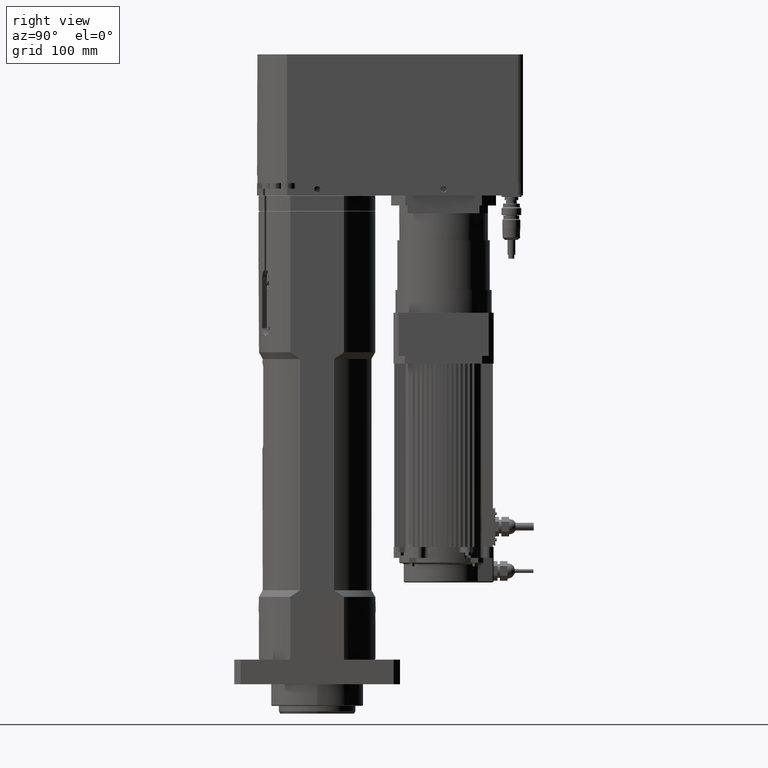
[diagram: clean part render]
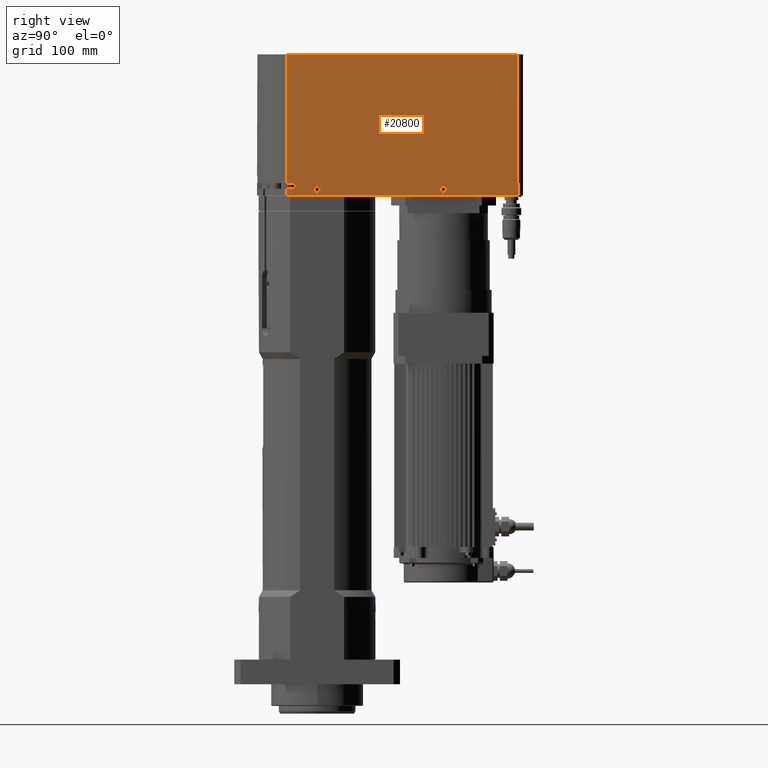
[diagram: same view with one face highlighted and labeled with its STEP entity id]
A machine part, right view. The second image highlights one B-rep face of the part: STEP entity #20800.
In plain terms, the highlighted planar face has unit normal (1, 0, 0).
Its self-contained STEP definition (entity closure, byte-faithful):
#751=LINE('',#35174,#2425);
#753=LINE('',#35178,#2427);
#754=LINE('',#35182,#2428);
#766=LINE('',#35227,#2440);
#769=LINE('',#35236,#2443);
#772=LINE('',#35246,#2446);
#826=LINE('',#35457,#2500);
#832=LINE('',#35473,#2506);
#833=LINE('',#35476,#2507);
#834=LINE('',#35477,#2508);
#2425=VECTOR('',#26324,6.99999999999989);
#2427=VECTOR('',#26328,10.9436096450426);
#2428=VECTOR('',#26333,10.9436096450699);
#2440=VECTOR('',#26381,0.600000000000378);
#2443=VECTOR('',#26390,167.);
#2446=VECTOR('',#26399,299.486442662386);
#2500=VECTOR('',#26601,167.);
#2506=VECTOR('',#26619,9.00000000000006);
#2507=VECTOR('',#26622,300.086442662414);
#2508=VECTOR('',#26623,15.9999999999999);
#3965=FACE_BOUND('',#6507,.T.);
#3966=FACE_BOUND('',#6508,.T.);
#5092=FACE_OUTER_BOUND('',#6506,.T.);
#6506=EDGE_LOOP('',(#15478,#15479,#15480,#15481,#15482,#15483,#15484,#15485,
#15486,#15487));
#6507=EDGE_LOOP('',(#15488));
#6508=EDGE_LOOP('',(#15489));
#7614=CIRCLE('',#22462,4.188);
#7615=CIRCLE('',#22464,4.188);
#8967=VERTEX_POINT('',#35171);
#8968=VERTEX_POINT('',#35173);
#8969=VERTEX_POINT('',#35177);
#8970=VERTEX_POINT('',#35181);
#8975=VERTEX_POINT('',#35193);
#8976=VERTEX_POINT('',#35196);
#8984=VERTEX_POINT('',#35224);
#8985=VERTEX_POINT('',#35226);
#8988=VERTEX_POINT('',#35234);
#8992=VERTEX_POINT('',#35244);
#9055=VERTEX_POINT('',#35471);
#9056=VERTEX_POINT('',#35475);
#11234=EDGE_CURVE('',#8967,#8968,#751,.T.);
#11236=EDGE_CURVE('',#8968,#8969,#753,.T.);
#11238=EDGE_CURVE('',#8970,#8967,#754,.T.);
#11244=EDGE_CURVE('',#8975,#8975,#7614,.T.);
#11245=EDGE_CURVE('',#8976,#8976,#7615,.T.);
#11259=EDGE_CURVE('',#8984,#8985,#766,.T.);
#11264=EDGE_CURVE('',#8988,#8984,#769,.T.);
#11269=EDGE_CURVE('',#8988,#8992,#772,.T.);
#11361=EDGE_CURVE('',#8992,#8969,#826,.T.);
#11369=EDGE_CURVE('',#9055,#8970,#832,.T.);
#11370=EDGE_CURVE('',#9055,#9056,#833,.T.);
#11371=EDGE_CURVE('',#9056,#8985,#834,.T.);
#15478=ORIENTED_EDGE('',*,*,#11238,.F.);
#15479=ORIENTED_EDGE('',*,*,#11369,.F.);
#15480=ORIENTED_EDGE('',*,*,#11370,.T.);
#15481=ORIENTED_EDGE('',*,*,#11371,.T.);
#15482=ORIENTED_EDGE('',*,*,#11259,.F.);
#15483=ORIENTED_EDGE('',*,*,#11264,.F.);
#15484=ORIENTED_EDGE('',*,*,#11269,.T.);
#15485=ORIENTED_EDGE('',*,*,#11361,.T.);
#15486=ORIENTED_EDGE('',*,*,#11236,.F.);
#15487=ORIENTED_EDGE('',*,*,#11234,.F.);
#15488=ORIENTED_EDGE('',*,*,#11245,.T.);
#15489=ORIENTED_EDGE('',*,*,#11244,.T.);
#18626=PLANE('',#22562);
#20800=ADVANCED_FACE('',(#5092,#3965,#3966),#18626,.T.);
#22462=AXIS2_PLACEMENT_3D('',#35194,#26344,#26345);
#22464=AXIS2_PLACEMENT_3D('',#35197,#26348,#26349);
#22562=AXIS2_PLACEMENT_3D('',#35474,#26620,#26621);
#26324=DIRECTION('',(0.,0.,1.));
#26328=DIRECTION('',(-8.3038803127521E-16,-1.,2.66122490000509E-109));
#26333=DIRECTION('',(0.,1.,0.));
#26344=DIRECTION('center_axis',(-1.,0.,0.));
#26345=DIRECTION('ref_axis',(0.,1.,0.));
#26348=DIRECTION('center_axis',(-1.,0.,0.));
#26349=DIRECTION('ref_axis',(0.,1.,0.));
#26381=DIRECTION('',(0.,1.,0.));
#26390=DIRECTION('',(-8.39734513445887E-140,-2.66122490000509E-109,-1.));
#26399=DIRECTION('',(-8.3038803127521E-16,-1.,2.66122490000509E-109));
#26601=DIRECTION('',(-8.39734513445887E-140,-2.66122490000509E-109,-1.));
#26619=DIRECTION('',(0.,0.,1.));
#26620=DIRECTION('center_axis',(1.,0.,0.));
#26621=DIRECTION('ref_axis',(0.,1.,0.));
#26622=DIRECTION('',(0.,1.,0.));
#26623=DIRECTION('',(0.,0.,1.));
#35171=CARTESIAN_POINT('',(67.5000000000001,-28.142833017344,643.));
#35173=CARTESIAN_POINT('',(67.5000000000001,-28.142833017344,650.));
#35174=CARTESIAN_POINT('',(67.5000000000001,-28.142833017344,634.));
#35177=CARTESIAN_POINT('',(67.5000000000001,-39.0864426623866,650.));
#35178=CARTESIAN_POINT('',(67.5000000000004,260.4,650.));
#35181=CARTESIAN_POINT('',(67.5000000000001,-39.0864426624139,643.));
#35182=CARTESIAN_POINT('',(67.5000000000001,-39.0864426624139,643.));
#35193=CARTESIAN_POINT('',(67.5000000000001,168.188,642.));
#35194=CARTESIAN_POINT('Origin',(67.5000000000001,164.,642.));
#35196=CARTESIAN_POINT('',(67.5000000000001,4.188,642.));
#35197=CARTESIAN_POINT('Origin',(67.5000000000001,0.,642.));
#35224=CARTESIAN_POINT('',(67.5000000000004,260.4,650.));
#35226=CARTESIAN_POINT('',(67.5000000000001,261.,650.));
#35227=CARTESIAN_POINT('',(67.5000000000001,-39.0864426624139,650.));
#35234=CARTESIAN_POINT('',(67.5000000000004,260.4,817.));
#35236=CARTESIAN_POINT('',(67.5000000000004,260.4,817.));
#35244=CARTESIAN_POINT('',(67.5000000000001,-39.0864426623866,817.));
#35246=CARTESIAN_POINT('',(67.5000000000004,260.4,817.));
#35457=CARTESIAN_POINT('',(67.5000000000001,-39.0864426623866,817.));
#35471=CARTESIAN_POINT('',(67.5000000000001,-39.0864426624139,634.));
#35473=CARTESIAN_POINT('',(67.5000000000001,-39.0864426624139,634.));
#35474=CARTESIAN_POINT('Origin',(67.5000000000001,-39.0864426624139,634.));
#35475=CARTESIAN_POINT('',(67.5000000000001,261.,634.));
#35476=CARTESIAN_POINT('',(67.5000000000001,-39.0864426624139,634.));
#35477=CARTESIAN_POINT('',(67.5000000000001,261.,634.));